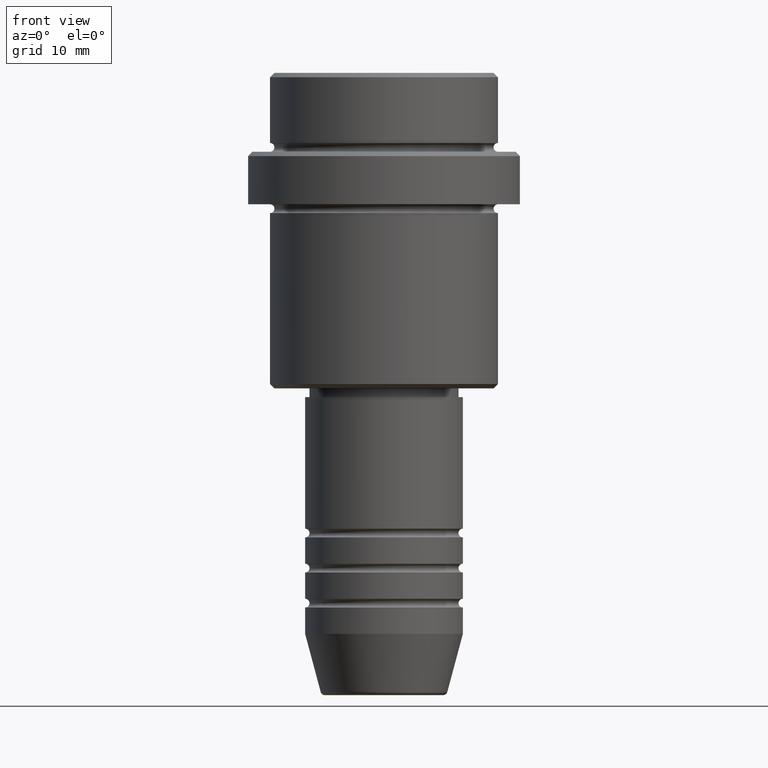
[diagram: clean part render]
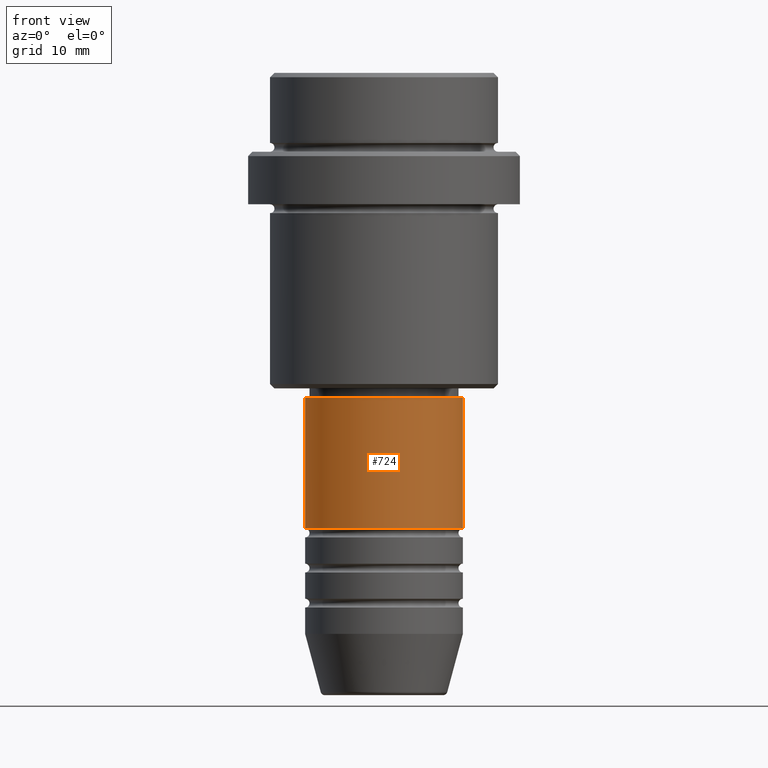
[diagram: same view with one face highlighted and labeled with its STEP entity id]
A machine part, front view. The second image highlights one B-rep face of the part: STEP entity #724.
In plain terms, the highlighted cylindrical surface (partial cylindrical patch) has radius 9 mm, axis along (-0, -0, 1).
Its self-contained STEP definition (entity closure, byte-faithful):
#71 = CARTESIAN_POINT ( 'NONE',  ( -9.000000000000001776, 1.102182119232617911E-15, -37.00000000000000000 ) ) ;
#81 = CARTESIAN_POINT ( 'NONE',  ( 9.000000000000001776, 0.000000000000000000, 0.000000000000000000 ) ) ;
#102 = AXIS2_PLACEMENT_3D ( 'NONE', #911, #353, #997 ) ;
#141 = ORIENTED_EDGE ( 'NONE', *, *, #712, .F. ) ;
#261 = CARTESIAN_POINT ( 'NONE',  ( 9.000000000000001776, 0.000000000000000000, -37.00000000000000000 ) ) ;
#281 = DIRECTION ( 'NONE',  ( -0.000000000000000000, -0.000000000000000000, 1.000000000000000000 ) ) ;
#306 = CARTESIAN_POINT ( 'NONE',  ( 9.000000000000000000, 0.000000000000000000, -51.99999999999988631 ) ) ;
#321 = DIRECTION ( 'NONE',  ( -0.000000000000000000, -0.000000000000000000, 1.000000000000000000 ) ) ;
#347 = ORIENTED_EDGE ( 'NONE', *, *, #921, .F. ) ;
#351 = ORIENTED_EDGE ( 'NONE', *, *, #582, .T. ) ;
#353 = DIRECTION ( 'NONE',  ( -0.000000000000000000, -0.000000000000000000, 1.000000000000000000 ) ) ;
#359 = VERTEX_POINT ( 'NONE', #71 ) ;
#423 = DIRECTION ( 'NONE',  ( 1.000000000000000000, 0.000000000000000000, 0.000000000000000000 ) ) ;
#434 = ORIENTED_EDGE ( 'NONE', *, *, #1049, .T. ) ;
#552 = CARTESIAN_POINT ( 'NONE',  ( 0.000000000000000000, 0.000000000000000000, 0.000000000000000000 ) ) ;
#582 = EDGE_CURVE ( 'NONE', #1234, #1121, #1055, .T. ) ;
#661 = CARTESIAN_POINT ( 'NONE',  ( -9.000000000000001776, 1.102182119232617911E-15, 0.000000000000000000 ) ) ;
#670 = DIRECTION ( 'NONE',  ( -0.000000000000000000, -0.000000000000000000, 1.000000000000000000 ) ) ;
#712 = EDGE_CURVE ( 'NONE', #1091, #359, #1199, .T. ) ;
#724 = ADVANCED_FACE ( 'NONE', ( #1397 ), #1094, .T. ) ;
#736 = DIRECTION ( 'NONE',  ( 1.000000000000000000, 0.000000000000000000, 0.000000000000000000 ) ) ;
#810 = CIRCLE ( 'NONE', #1159, 9.000000000000000000 ) ;
#908 = CARTESIAN_POINT ( 'NONE',  ( 0.000000000000000000, 0.000000000000000000, -51.99999999999988631 ) ) ;
#911 = CARTESIAN_POINT ( 'NONE',  ( 0.000000000000000000, 0.000000000000000000, -37.00000000000000000 ) ) ;
#921 = EDGE_CURVE ( 'NONE', #359, #1121, #1404, .T. ) ;
#997 = DIRECTION ( 'NONE',  ( 1.000000000000000000, 0.000000000000000000, 0.000000000000000000 ) ) ;
#1027 = EDGE_LOOP ( 'NONE', ( #141, #434, #351, #347 ) ) ;
#1037 = DIRECTION ( 'NONE',  ( -0.000000000000000000, -0.000000000000000000, 1.000000000000000000 ) ) ;
#1049 = EDGE_CURVE ( 'NONE', #1091, #1234, #810, .T. ) ;
#1055 = LINE ( 'NONE', #81, #1291 ) ;
#1091 = VERTEX_POINT ( 'NONE', #1369 ) ;
#1094 = CYLINDRICAL_SURFACE ( 'NONE', #1294, 9.000000000000001776 ) ;
#1121 = VERTEX_POINT ( 'NONE', #261 ) ;
#1159 = AXIS2_PLACEMENT_3D ( 'NONE', #908, #1037, #736 ) ;
#1199 = LINE ( 'NONE', #661, #1401 ) ;
#1234 = VERTEX_POINT ( 'NONE', #306 ) ;
#1291 = VECTOR ( 'NONE', #281, 1000.000000000000000 ) ;
#1294 = AXIS2_PLACEMENT_3D ( 'NONE', #552, #670, #423 ) ;
#1369 = CARTESIAN_POINT ( 'NONE',  ( -9.000000000000000000, 1.102182119232617714E-15, -51.99999999999988631 ) ) ;
#1397 = FACE_OUTER_BOUND ( 'NONE', #1027, .T. ) ;
#1401 = VECTOR ( 'NONE', #321, 1000.000000000000000 ) ;
#1404 = CIRCLE ( 'NONE', #102, 9.000000000000001776 ) ;